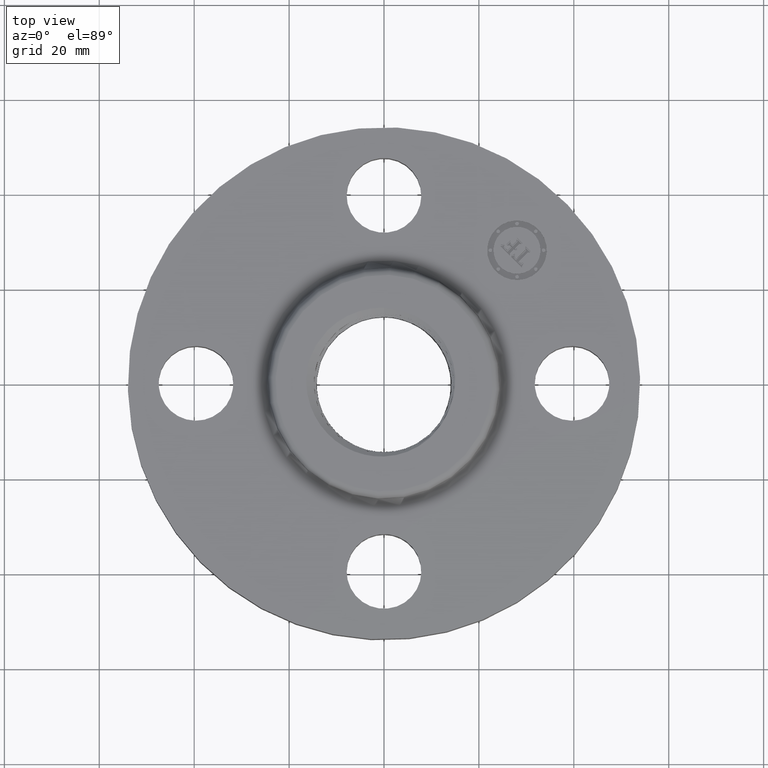
[diagram: clean part render]
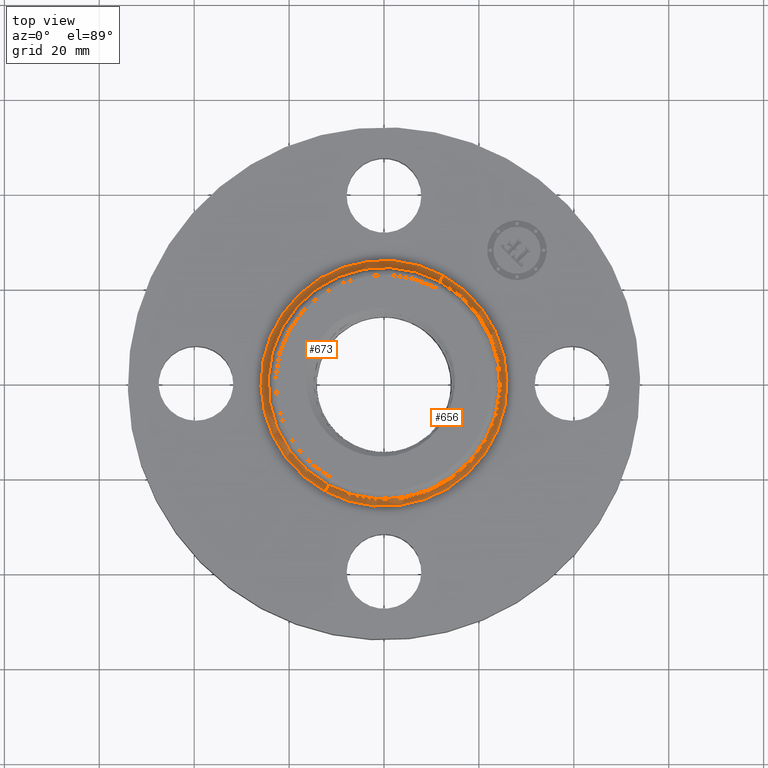
[diagram: same view with one multi-face feature highlighted, each face labeled with its STEP entity id]
A machine part, top view. The highlighted faces form ONE feature: a constant-radius fillet chain: 2 tangent blend faces with common blend radius 1.524 mm. The faces share edges in the B-rep.
Their STEP definitions:
[1] entity #673 (Torus):
#620=AXIS2_PLACEMENT_3D('Torus Axis2P3D',#617,#618,#619) ;
#633=AXIS2_PLACEMENT_3D('Circle Axis2P3D',#631,#632,$) ;
#647=AXIS2_PLACEMENT_3D('Circle Axis2P3D',#645,#646,$) ;
#659=AXIS2_PLACEMENT_3D('Circle Axis2P3D',#657,#658,$) ;
#664=AXIS2_PLACEMENT_3D('Circle Axis2P3D',#662,#663,$) ;
#617=CARTESIAN_POINT('Axis2P3D Location',(0.,0.,0.560000000002)) ;
#626=CARTESIAN_POINT('Vertex',(0.489179920005,0.895437837278,0.500000000002)) ;
#628=CARTESIAN_POINT('Vertex',(-0.489179920005,-0.895437837278,0.500000000002)) ;
#631=CARTESIAN_POINT('Axis2P3D Location',(0.489179920005,0.895437837278,0.560000000002)) ;
#635=CARTESIAN_POINT('Vertex',(0.460851400761,0.843582830626,0.549581109342)) ;
#642=CARTESIAN_POINT('Vertex',(-0.460851400761,-0.843582830626,0.549581109342)) ;
#645=CARTESIAN_POINT('Axis2P3D Location',(-0.489179920005,-0.895437837278,0.560000000002)) ;
#657=CARTESIAN_POINT('Axis2P3D Location',(0.,0.,0.500000000002)) ;
#662=CARTESIAN_POINT('Axis2P3D Location',(0.,0.,0.549581109342)) ;
#618=DIRECTION('Axis2P3D Direction',(0.,0.,-0.0393700787402)) ;
#619=DIRECTION('Axis2P3D XDirection',(-0.0188750212049,-0.0345504945626,0.)) ;
#632=DIRECTION('Axis2P3D Direction',(-0.0345504945626,0.0188750212049,0.)) ;
#646=DIRECTION('Axis2P3D Direction',(0.0345504945626,-0.0188750212049,0.)) ;
#658=DIRECTION('Axis2P3D Direction',(0.,0.,-0.0393700787402)) ;
#663=DIRECTION('Axis2P3D Direction',(0.,0.,-0.0393700787402)) ;
#668=ORIENTED_EDGE('',*,*,#661,.F.) ;
#669=ORIENTED_EDGE('',*,*,#649,.T.) ;
#670=ORIENTED_EDGE('',*,*,#666,.T.) ;
#671=ORIENTED_EDGE('',*,*,#637,.F.) ;
#673=ADVANCED_FACE('PartBody',(#672),#621,.F.) ;
#634=CIRCLE('generated circle',#633,0.0600000000002) ;
#648=CIRCLE('generated circle',#647,0.0600000000002) ;
#660=CIRCLE('generated circle',#659,1.02034597787) ;
#665=CIRCLE('generated circle',#664,0.961257512694) ;
#621=TOROIDAL_SURFACE('homeo Torus',#620,1.02034597787,0.0600000000002) ;
#637=EDGE_CURVE('',#627,#636,#634,.T.) ;
#649=EDGE_CURVE('',#629,#643,#648,.T.) ;
#661=EDGE_CURVE('',#629,#627,#660,.T.) ;
#666=EDGE_CURVE('',#643,#636,#665,.T.) ;
#667=EDGE_LOOP('',(#668,#669,#670,#671)) ;
#672=FACE_OUTER_BOUND('',#667,.T.) ;
#627=VERTEX_POINT('',#626) ;
#629=VERTEX_POINT('',#628) ;
#636=VERTEX_POINT('',#635) ;
#643=VERTEX_POINT('',#642) ;
[2] entity #656 (Torus):
#620=AXIS2_PLACEMENT_3D('Torus Axis2P3D',#617,#618,#619) ;
#624=AXIS2_PLACEMENT_3D('Circle Axis2P3D',#622,#623,$) ;
#633=AXIS2_PLACEMENT_3D('Circle Axis2P3D',#631,#632,$) ;
#640=AXIS2_PLACEMENT_3D('Circle Axis2P3D',#638,#639,$) ;
#647=AXIS2_PLACEMENT_3D('Circle Axis2P3D',#645,#646,$) ;
#617=CARTESIAN_POINT('Axis2P3D Location',(0.,0.,0.560000000002)) ;
#622=CARTESIAN_POINT('Axis2P3D Location',(0.,0.,0.500000000002)) ;
#626=CARTESIAN_POINT('Vertex',(0.489179920005,0.895437837278,0.500000000002)) ;
#628=CARTESIAN_POINT('Vertex',(-0.489179920005,-0.895437837278,0.500000000002)) ;
#631=CARTESIAN_POINT('Axis2P3D Location',(0.489179920005,0.895437837278,0.560000000002)) ;
#635=CARTESIAN_POINT('Vertex',(0.460851400761,0.843582830626,0.549581109342)) ;
#638=CARTESIAN_POINT('Axis2P3D Location',(0.,0.,0.549581109342)) ;
#642=CARTESIAN_POINT('Vertex',(-0.460851400761,-0.843582830626,0.549581109342)) ;
#645=CARTESIAN_POINT('Axis2P3D Location',(-0.489179920005,-0.895437837278,0.560000000002)) ;
#618=DIRECTION('Axis2P3D Direction',(0.,0.,-0.0393700787402)) ;
#619=DIRECTION('Axis2P3D XDirection',(-0.0188750212049,-0.0345504945626,0.)) ;
#623=DIRECTION('Axis2P3D Direction',(0.,0.,-0.0393700787402)) ;
#632=DIRECTION('Axis2P3D Direction',(-0.0345504945626,0.0188750212049,0.)) ;
#639=DIRECTION('Axis2P3D Direction',(0.,0.,-0.0393700787402)) ;
#646=DIRECTION('Axis2P3D Direction',(0.0345504945626,-0.0188750212049,0.)) ;
#651=ORIENTED_EDGE('',*,*,#630,.F.) ;
#652=ORIENTED_EDGE('',*,*,#637,.T.) ;
#653=ORIENTED_EDGE('',*,*,#644,.T.) ;
#654=ORIENTED_EDGE('',*,*,#649,.F.) ;
#656=ADVANCED_FACE('PartBody',(#655),#621,.F.) ;
#625=CIRCLE('generated circle',#624,1.02034597787) ;
#634=CIRCLE('generated circle',#633,0.0600000000002) ;
#641=CIRCLE('generated circle',#640,0.961257512694) ;
#648=CIRCLE('generated circle',#647,0.0600000000002) ;
#621=TOROIDAL_SURFACE('homeo Torus',#620,1.02034597787,0.0600000000002) ;
#630=EDGE_CURVE('',#627,#629,#625,.T.) ;
#637=EDGE_CURVE('',#627,#636,#634,.T.) ;
#644=EDGE_CURVE('',#636,#643,#641,.T.) ;
#649=EDGE_CURVE('',#629,#643,#648,.T.) ;
#650=EDGE_LOOP('',(#651,#652,#653,#654)) ;
#655=FACE_OUTER_BOUND('',#650,.T.) ;
#627=VERTEX_POINT('',#626) ;
#629=VERTEX_POINT('',#628) ;
#636=VERTEX_POINT('',#635) ;
#643=VERTEX_POINT('',#642) ;